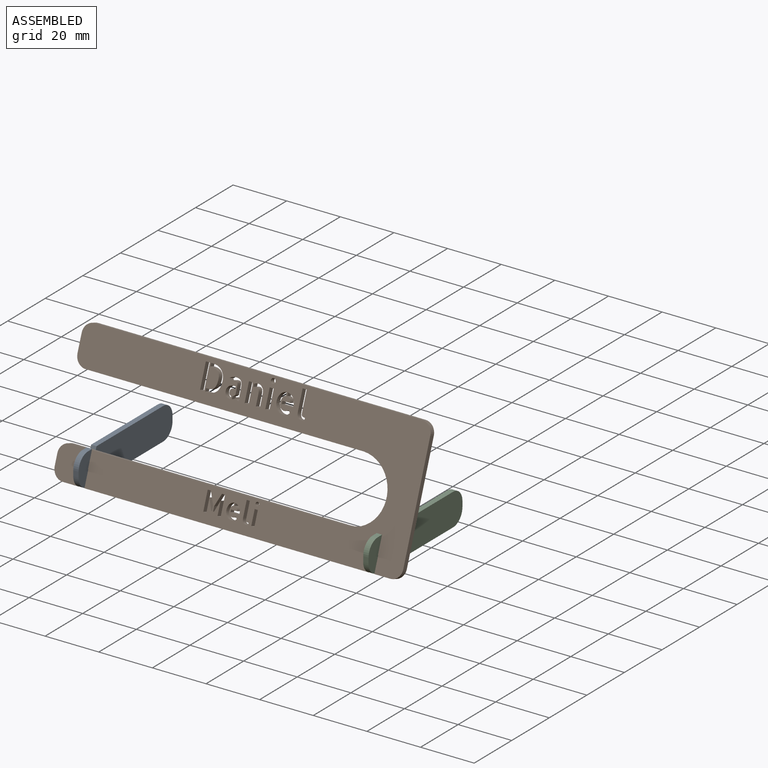
[diagram: assembled view]
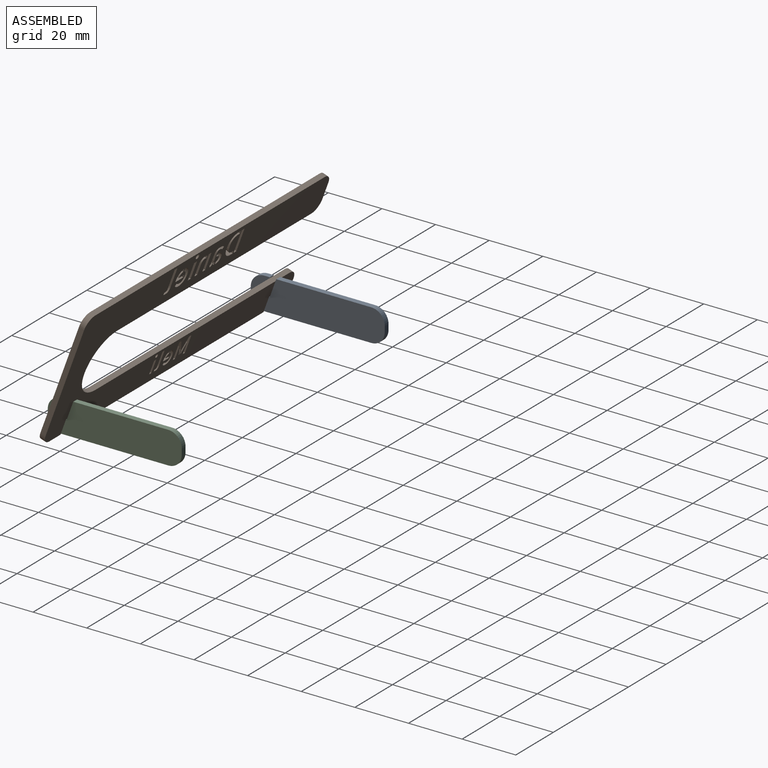
[diagram: assembled view, second angle]
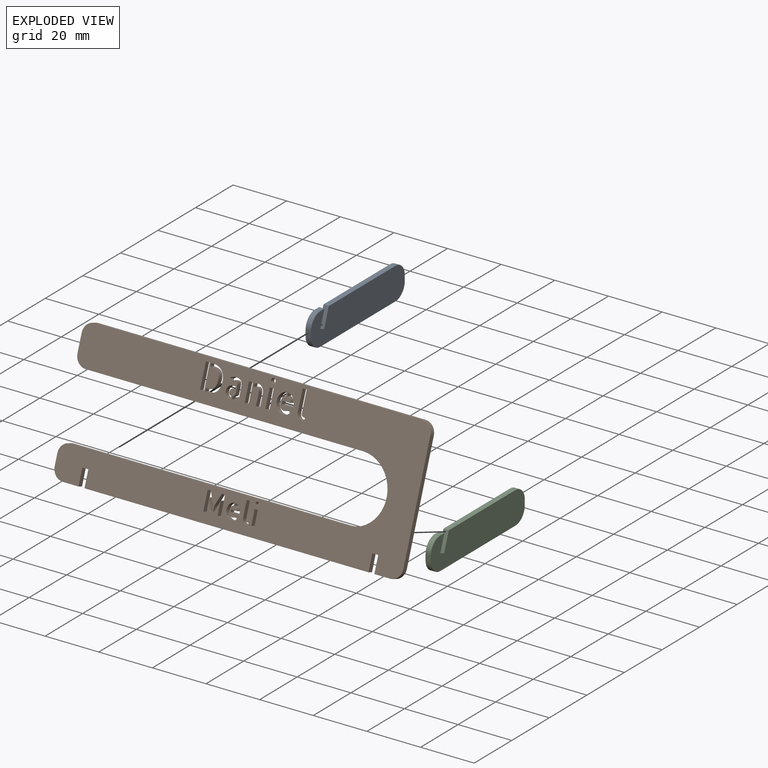
[diagram: exploded view]
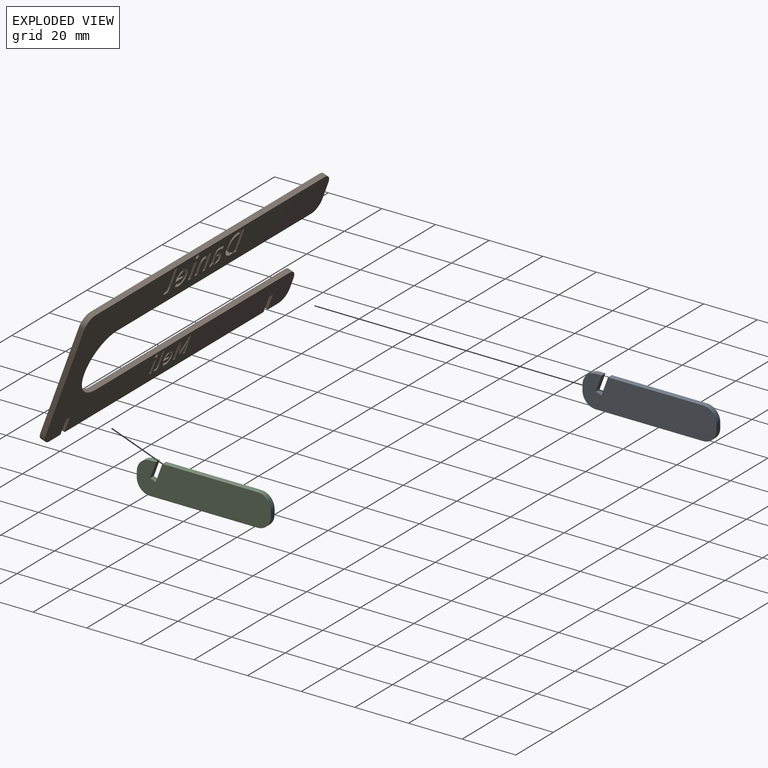
[diagram: exploded view, second angle]
ASSEMBLY  parts=3 mates=2
PART A: 14 faces, bbox 50x12x2 mm
  f0: plane 2x2mm, normal (-1,0,0), area 4mm2, adj f1,f11,f12,f13
  f1: cylinder r=5mm len=5mm, axis (0,0,-1), area 15.7mm2, adj f0,f2,f12,f13
  f2: plane 40x2mm, normal (0,-1,0), area 80mm2, adj f1,f3,f12,f13
  f3: cylinder r=5mm len=5mm, axis (0,0,-1), area 15.7mm2, adj f2,f4,f12,f13
  f4: plane 2x2mm, normal (1,0,0), area 4mm2, adj f3,f5,f12,f13
  f5: cylinder r=5mm len=5mm, axis (0,0,-1), area 15.7mm2, adj f4,f6,f12,f13
  f6: plane 35.48x2mm, normal (0,1,0), area 70.9mm2, adj f5,f7,f12,f13
  f7: plane 6.75x2.46mm, normal (-0.94,0.34,0), area 14.4mm2, adj f6,f8,f12,f13
  f8: plane 2.07x2mm, normal (0.34,0.94,0), area 4.4mm2, adj f7,f9,f12,f13
  f9: plane 6x2.18mm, normal (0.94,-0.34,0), area 12.8mm2, adj f8,f10,f12,f13
  f10: plane 2.18x2mm, normal (0,1,0), area 4.4mm2, adj f9,f11,f12,f13
  f11: cylinder r=5mm len=5mm, axis (0,0,-1), area 15.7mm2, adj f0,f10,f12,f13
  f12: plane 50x12mm, normal (0,0,1), area 563.6mm2, adj f0,f1,f2,f3,f4,f5,f6,f7
  f13: plane 50x12mm, normal (0,0,-1), area 563.6mm2, adj f0,f1,f2,f3,f4,f5,f6,f7
PART B: 275 faces, bbox 130x50x2 mm
  f0: plane 5.85x2mm, normal (0,-1,0), area 11.7mm2, adj f2,f14,f271,f274
  f1: plane 105.91x2mm, normal (0,-1,0), area 211.8mm2, adj f2,f270,f272,f274
  f2: plane 130x50mm, normal (0,0,-1), area 3542.8mm2, adj f0,f1,f3,f4,f5,f6,f7,f8
  f3: plane 42x2mm, normal (1,0,0), area 84mm2, adj f2,f4,f267,f274
  f4: cylinder r=4mm len=4mm, axis (0,0,-1), area 12.6mm2, adj f2,f3,f5,f274
  f5: plane 122x2mm, normal (0,1,0), area 244mm2, adj f2,f4,f6,f274
  f6: cylinder r=4mm len=4mm, axis (0,0,-1), area 12.6mm2, adj f2,f5,f7,f274
  f7: plane 6.5x2mm, normal (-1,0,0), area 13mm2, adj f2,f6,f8,f274
  f8: cylinder r=4mm len=4mm, axis (0,0,-1), area 12.6mm2, adj f2,f7,f9,f274
  f9: plane 103.66x2mm, normal (0,-1,0), area 207.3mm2, adj f2,f8,f10,f274
  f10: cylinder r=11.73mm len=23.45mm, axis (0,0,-1), area 73.7mm2, adj f2,f9,f11,f274
  f11: plane 102.96x2mm, normal (0,1,0), area 205.9mm2, adj f2,f10,f12,f274
  f12: cylinder r=4mm len=4mm, axis (0,0,-1), area 12.6mm2, adj f2,f11,f13,f274
  f13: plane 4.05x2mm, normal (-1,0,0), area 8.1mm2, adj f2,f12,f14,f274
  f14: cylinder r=4mm len=4mm, axis (0,0,-1), area 12.6mm2, adj f0,f2,f13,f274
  f15: plane 5.85x2mm, normal (0,-1,0), area 11.7mm2, adj f2,f267,f268,f274
  f16: extruded ~2x0.48mm, area 1.1mm2, adj f2,f17,f249,f274
  f17: extruded ~2x0.48mm, area 1.1mm2, adj f2,f16,f18,f274
  f18: extruded ~2x0.48mm, area 1.1mm2, adj f2,f17,f19,f274
  f19: extruded ~2x0.48mm, area 1.1mm2, adj f2,f18,f20,f274
  f20: extruded ~2x0.47mm, area 1.1mm2, adj f2,f19,f21,f274
  f21: extruded ~2x0.48mm, area 1.1mm2, adj f2,f20,f22,f274
  f22: extruded ~2x0.48mm, area 1.1mm2, adj f2,f21,f249,f274
  f23: plane 5.36x2mm, normal (-1,0,0), area 10.7mm2, adj f2,f24,f250,f274
  f24: plane 2x1.16mm, normal (0,1,0), area 2.3mm2, adj f2,f23,f25,f274
  f25: plane 5.36x2mm, normal (1,0,0), area 10.7mm2, adj f2,f24,f250,f274
  f26: plane 5.74x2mm, normal (-1,0,0), area 11.5mm2, adj f2,f27,f251,f274
  f27: extruded ~2x0.51mm, area 1mm2, adj f2,f26,f28,f274
  f28: extruded ~2x0.28mm, area 0.7mm2, adj f2,f27,f29,f274
  f29: extruded ~2x0.35mm, area 0.7mm2, adj f2,f28,f30,f274
  f30: extruded ~2x0.42mm, area 0.8mm2, adj f2,f29,f31,f274
  f31: plane 2x0.7mm, normal (-1,0,0), area 1.4mm2, adj f2,f30,f32,f274
  f32: extruded ~2x0.26mm, area 0.5mm2, adj f2,f31,f33,f274
  f33: extruded ~2x0.25mm, area 0.5mm2, adj f2,f32,f34,f274
  f34: extruded ~2x0.28mm, area 0.6mm2, adj f2,f33,f35,f274
  f35: extruded ~2x0.29mm, area 0.6mm2, adj f2,f34,f36,f274
  f36: extruded ~2x0.26mm, area 0.5mm2, adj f2,f35,f37,f274
  f37: extruded ~2x0.5mm, area 1.2mm2, adj f2,f36,f38,f274
  f38: extruded ~2x0.49mm, area 1.1mm2, adj f2,f37,f39,f274
  f39: extruded ~2x0.53mm, area 1.1mm2, adj f2,f38,f40,f274
  f40: extruded ~2x0.4mm, area 0.8mm2, adj f2,f39,f41,f274
  f41: plane 5.69x2mm, normal (1,0,0), area 11.4mm2, adj f2,f40,f251,f274
  f42: extruded ~2x0.68mm, area 1.4mm2, adj f2,f43,f252,f274
  f43: extruded ~2x0.26mm, area 0.5mm2, adj f2,f42,f44,f274
  f44: extruded ~2x0.33mm, area 0.7mm2, adj f2,f43,f45,f274
  f45: extruded ~2x0.35mm, area 0.8mm2, adj f2,f44,f46,f274
  f46: extruded ~2x0.31mm, area 0.8mm2, adj f2,f45,f47,f274
  f47: plane 2x0.64mm, normal (-0.84,-0.55,0), area 1.5mm2, adj f2,f46,f48,f274
  f48: extruded ~2x0.73mm, area 1.9mm2, adj f2,f47,f49,f274
  f49: extruded ~2x1.06mm, area 2.2mm2, adj f2,f48,f50,f274
  f50: extruded ~2x0.98mm, area 2mm2, adj f2,f49,f51,f274
  f51: extruded ~2x0.78mm, area 2mm2, adj f2,f50,f52,f274
  f52: extruded ~2x0.86mm, area 2mm2, adj f2,f51,f53,f274
  f53: extruded ~2x1.06mm, area 2.2mm2, adj f2,f52,f54,f274
  f54: extruded ~2x1.03mm, area 2.1mm2, adj f2,f53,f55,f274
  f55: extruded ~2x0.85mm, area 2mm2, adj f2,f54,f56,f274
  f56: extruded ~2x0.71mm, area 1.9mm2, adj f2,f55,f57,f274
  f57: extruded ~2x0.87mm, area 1.8mm2, adj f2,f56,f58,f274
  f58: plane 2x0.91mm, normal (-1,0,0), area 1.8mm2, adj f2,f57,f59,f274
  f59: extruded ~2x0.58mm, area 1.3mm2, adj f2,f58,f60,f274
  f60: extruded ~2x0.5mm, area 1.2mm2, adj f2,f59,f61,f274
  f61: extruded ~2x0.57mm, area 1.2mm2, adj f2,f60,f62,f274
  f62: extruded ~2x0.5mm, area 1mm2, adj f2,f61,f63,f274
  f63: extruded ~2x0.69mm, area 1.4mm2, adj f2,f62,f64,f274
  f64: extruded ~2x0.55mm, area 1.2mm2, adj f2,f63,f252,f274
  f65: plane 2x0.89mm, normal (1,0,0), area 1.8mm2, adj f2,f66,f253,f274
  f66: extruded ~2x0.93mm, area 1.9mm2, adj f2,f65,f67,f274
  f67: extruded ~2x0.71mm, area 1.9mm2, adj f2,f66,f68,f274
  f68: extruded ~2x0.83mm, area 1.9mm2, adj f2,f67,f69,f274
  f69: extruded ~2x0.97mm, area 2mm2, adj f2,f68,f70,f274
  f70: extruded ~2x0.46mm, area 0.9mm2, adj f2,f69,f71,f274
  f71: plane 3.26x2mm, normal (0,1,0), area 6.5mm2, adj f2,f70,f72,f274
  f72: plane 2x0.84mm, normal (1,0,0), area 1.7mm2, adj f2,f71,f73,f274
  f73: plane 2.19x2mm, normal (0,-1,0), area 4.4mm2, adj f2,f72,f74,f274
  f74: extruded ~2x0.48mm, area 1mm2, adj f2,f73,f75,f274
  f75: extruded ~2x0.42mm, area 1mm2, adj f2,f74,f76,f274
  f76: extruded ~2x0.37mm, area 1mm2, adj f2,f75,f253,f274
  f77: plane 4.34x2mm, normal (0.92,-0.4,0), area 9.5mm2, adj f2,f78,f254,f274
  f78: plane 2x1.16mm, normal (0,-1,0), area 2.3mm2, adj f2,f77,f79,f274
  f79: plane 7x2mm, normal (-1,0,0), area 14mm2, adj f2,f78,f80,f274
  f80: plane 2x1.16mm, normal (0,1,0), area 2.3mm2, adj f2,f79,f81,f274
  f81: plane 4.81x2mm, normal (1,0,0), area 9.6mm2, adj f2,f80,f82,f274
  f82: plane 3.89x2mm, normal (-0.93,0.37,0), area 8.4mm2, adj f2,f81,f83,f274
  f83: plane 2x0.31mm, normal (0,1,0), area 0.6mm2, adj f2,f82,f254,f274
  f84: plane 7x2mm, normal (1,0,0), area 14mm2, adj f2,f85,f255,f274
  f85: plane 2x1.16mm, normal (0,-1,0), area 2.3mm2, adj f2,f84,f86,f274
  f86: plane 4.32x2mm, normal (-0.92,-0.4,0), area 9.4mm2, adj f2,f85,f87,f274
  f87: plane 2x1.76mm, normal (-1,0,0), area 3.5mm2, adj f2,f86,f88,f274
  f88: plane 2x0.3mm, normal (0,1,0), area 0.6mm2, adj f2,f87,f89,f274
  f89: plane 3.89x2mm, normal (0.93,0.38,0), area 8.4mm2, adj f2,f88,f90,f274
  f90: plane 4.81x2mm, normal (-1,0,0), area 9.6mm2, adj f2,f89,f255,f274
  f91: plane 7.38x2mm, normal (-1,0,0), area 14.8mm2, adj f2,f92,f256,f274
  f92: extruded ~2x0.65mm, area 1.3mm2, adj f2,f91,f93,f274
  f93: extruded ~2x0.35mm, area 0.9mm2, adj f2,f92,f94,f274
  f94: extruded ~2x0.45mm, area 0.9mm2, adj f2,f93,f95,f274
  f95: extruded ~2x0.54mm, area 1.1mm2, adj f2,f94,f96,f274
  f96: plane 2x0.9mm, normal (-1,0,0), area 1.8mm2, adj f2,f95,f97,f274
  f97: extruded ~2x0.33mm, area 0.7mm2, adj f2,f96,f98,f274
  f98: extruded ~2x0.32mm, area 0.6mm2, adj f2,f97,f99,f274
  f99: extruded ~2x0.37mm, area 0.7mm2, adj f2,f98,f100,f274
  f100: extruded ~2x0.37mm, area 0.7mm2, adj f2,f99,f101,f274
  f101: extruded ~2x0.33mm, area 0.7mm2, adj f2,f100,f102,f274
  f102: extruded ~2x0.65mm, area 1.5mm2, adj f2,f101,f103,f274
  f103: extruded ~2x0.63mm, area 1.4mm2, adj f2,f102,f104,f274
  f104: extruded ~2x0.68mm, area 1.4mm2, adj f2,f103,f105,f274
  f105: extruded ~2x0.51mm, area 1mm2, adj f2,f104,f106,f274
  f106: plane 7.31x2mm, normal (1,0,0), area 14.6mm2, adj f2,f105,f256,f274
  f107: extruded ~2x0.87mm, area 1.8mm2, adj f2,f108,f257,f274
  f108: extruded ~2x0.34mm, area 0.7mm2, adj f2,f107,f109,f274
  f109: extruded ~2x0.43mm, area 0.9mm2, adj f2,f108,f110,f274
  f110: extruded ~2x0.45mm, area 1mm2, adj f2,f109,f111,f274
  f111: extruded ~2x0.4mm, area 1mm2, adj f2,f110,f112,f274
  f112: plane 2x0.82mm, normal (-0.84,-0.55,0), area 2mm2, adj f2,f111,f113,f274
  f113: extruded ~2x0.94mm, area 2.4mm2, adj f2,f112,f114,f274
  f114: extruded ~2x1.37mm, area 2.8mm2, adj f2,f113,f115,f274
  f115: extruded ~2x1.26mm, area 2.6mm2, adj f2,f114,f116,f274
  f116: extruded ~2x1mm, area 2.5mm2, adj f2,f115,f117,f274
  f117: extruded ~2x1.11mm, area 2.6mm2, adj f2,f116,f118,f274
  f118: extruded ~2x1.37mm, area 2.8mm2, adj f2,f117,f119,f274
  f119: extruded ~2x1.32mm, area 2.7mm2, adj f2,f118,f120,f274
  f120: extruded ~2x1.09mm, area 2.5mm2, adj f2,f119,f121,f274
  f121: extruded ~2x0.91mm, area 2.4mm2, adj f2,f120,f122,f274
  f122: extruded ~2x1.12mm, area 2.4mm2, adj f2,f121,f123,f274
  f123: plane 2x1.17mm, normal (-1,0,0), area 2.3mm2, adj f2,f122,f124,f274
  f124: extruded ~2x0.74mm, area 1.7mm2, adj f2,f123,f125,f274
  f125: extruded ~2x0.64mm, area 1.6mm2, adj f2,f124,f126,f274
  f126: extruded ~2x0.74mm, area 1.6mm2, adj f2,f125,f127,f274
  f127: extruded ~2x0.65mm, area 1.3mm2, adj f2,f126,f128,f274
  f128: extruded ~2x0.89mm, area 1.8mm2, adj f2,f127,f129,f274
  f129: extruded ~2x0.71mm, area 1.6mm2, adj f2,f128,f257,f274
  f130: plane 2x1.15mm, normal (1,0,0), area 2.3mm2, adj f2,f131,f258,f274
  f131: extruded ~2x1.19mm, area 2.5mm2, adj f2,f130,f132,f274
  f132: extruded ~2x0.91mm, area 2.4mm2, adj f2,f131,f133,f274
  f133: extruded ~2x1.06mm, area 2.4mm2, adj f2,f132,f134,f274
  f134: extruded ~2x1.25mm, area 2.5mm2, adj f2,f133,f135,f274
  f135: extruded ~2x0.59mm, area 1.2mm2, adj f2,f134,f136,f274
  f136: plane 4.19x2mm, normal (0,1,0), area 8.4mm2, adj f2,f135,f137,f274
  f137: plane 2x1.07mm, normal (1,0,0), area 2.1mm2, adj f2,f136,f138,f274
  f138: plane 2.82x2mm, normal (0,-1,0), area 5.6mm2, adj f2,f137,f139,f274
  f139: extruded ~2x0.61mm, area 1.2mm2, adj f2,f138,f140,f274
  f140: extruded ~2x0.54mm, area 1.3mm2, adj f2,f139,f141,f274
  f141: extruded ~2x0.47mm, area 1.3mm2, adj f2,f140,f258,f274
  f142: extruded ~2x0.62mm, area 1.4mm2, adj f2,f143,f259,f274
  f143: extruded ~2x0.62mm, area 1.4mm2, adj f2,f142,f144,f274
  f144: extruded ~2x0.62mm, area 1.4mm2, adj f2,f143,f145,f274
  f145: extruded ~2x0.62mm, area 1.4mm2, adj f2,f144,f146,f274
  f146: extruded ~2x0.61mm, area 1.4mm2, adj f2,f145,f147,f274
  f147: extruded ~2x0.62mm, area 1.4mm2, adj f2,f146,f148,f274
  f148: extruded ~2x0.61mm, area 1.4mm2, adj f2,f147,f259,f274
  f149: plane 6.88x2mm, normal (-1,0,0), area 13.8mm2, adj f2,f150,f260,f274
  f150: plane 2x1.49mm, normal (0,1,0), area 3mm2, adj f2,f149,f151,f274
  f151: plane 6.88x2mm, normal (1,0,0), area 13.8mm2, adj f2,f150,f260,f274
  f152: extruded ~2x0.76mm, area 1.9mm2, adj f2,f153,f261,f274
  f153: extruded ~2x0.48mm, area 1.2mm2, adj f2,f152,f154,f274
  f154: extruded ~2x0.57mm, area 1.2mm2, adj f2,f153,f155,f274
  f155: extruded ~2x0.6mm, area 1.2mm2, adj f2,f154,f156,f274
  f156: extruded ~2x0.6mm, area 1.2mm2, adj f2,f155,f157,f274
  f157: plane 3.87x2mm, normal (-1,0,0), area 7.7mm2, adj f2,f156,f158,f274
  f158: plane 2x1.49mm, normal (0,1,0), area 3mm2, adj f2,f157,f159,f274
  f159: plane 3.75x2mm, normal (1,0,0), area 7.5mm2, adj f2,f158,f160,f274
  f160: extruded ~2x0.79mm, area 1.6mm2, adj f2,f159,f161,f274
  f161: extruded ~2x0.67mm, area 1.4mm2, adj f2,f160,f162,f274
  f162: extruded ~2x0.46mm, area 1.2mm2, adj f2,f161,f163,f274
  f163: extruded ~2x0.65mm, area 1.4mm2, adj f2,f162,f164,f274
  f164: extruded ~2x0.46mm, area 0.9mm2, adj f2,f163,f165,f274
  f165: extruded ~2x0.56mm, area 1.2mm2, adj f2,f164,f166,f274
  f166: plane 2x0.94mm, normal (1,0,0), area 1.9mm2, adj f2,f165,f167,f274
  f167: extruded ~2x0.72mm, area 1.5mm2, adj f2,f166,f168,f274
  f168: extruded ~2x0.75mm, area 1.5mm2, adj f2,f167,f261,f274
  f169: plane 2x1.32mm, normal (0,-1,0), area 2.6mm2, adj f2,f170,f262,f274
  f170: plane 2x0.7mm, normal (-0.98,-0.22,0), area 1.4mm2, adj f2,f169,f171,f274
  f171: plane 6.19x2mm, normal (-1,0,0), area 12.4mm2, adj f2,f170,f172,f274
  f172: plane 2x1.48mm, normal (0,1,0), area 3mm2, adj f2,f171,f262,f274
  f173: plane 2x1.68mm, normal (-1,0,0), area 3.4mm2, adj f2,f174,f263,f274
  f174: extruded ~2x0.29mm, area 0.6mm2, adj f2,f173,f175,f274
  f175: extruded ~2x0.38mm, area 0.8mm2, adj f2,f174,f176,f274
  f176: extruded ~2x0.35mm, area 0.7mm2, adj f2,f175,f177,f274
  f177: extruded ~2x0.21mm, area 0.6mm2, adj f2,f176,f178,f274
  f178: plane 2x0.82mm, normal (-0.9,0.43,0), area 1.8mm2, adj f2,f177,f179,f274
  f179: extruded ~2x0.34mm, area 0.7mm2, adj f2,f178,f180,f274
  f180: extruded ~2x0.34mm, area 0.8mm2, adj f2,f179,f181,f274
  f181: extruded ~2x0.3mm, area 0.8mm2, adj f2,f180,f182,f274
  f182: extruded ~2x0.36mm, area 0.8mm2, adj f2,f181,f183,f274
  f183: extruded ~2x0.54mm, area 1.5mm2, adj f2,f182,f184,f274
  f184: extruded ~2x0.8mm, area 1.8mm2, adj f2,f183,f185,f274
  f185: plane 2x0.93mm, normal (1,0,0), area 1.9mm2, adj f2,f184,f186,f274
  f186: extruded ~2x0.53mm, area 1.2mm2, adj f2,f185,f187,f274
  f187: extruded ~2x0.42mm, area 1.2mm2, adj f2,f186,f188,f274
  f188: plane 2.58x2mm, normal (1,0,0), area 5.2mm2, adj f2,f187,f189,f274
  f189: extruded ~2x0.95mm, area 1.9mm2, adj f2,f188,f190,f274
  f190: extruded ~2x0.52mm, area 1.1mm2, adj f2,f189,f191,f274
  f191: extruded ~2x0.36mm, area 0.8mm2, adj f2,f190,f192,f274
  f192: extruded ~2x0.51mm, area 1mm2, adj f2,f191,f193,f274
  f193: extruded ~2x0.51mm, area 1mm2, adj f2,f192,f194,f274
  f194: extruded ~2x0.44mm, area 0.9mm2, adj f2,f193,f195,f274
  f195: extruded ~2x0.35mm, area 0.8mm2, adj f2,f194,f196,f274
  f196: extruded ~2x0.23mm, area 0.6mm2, adj f2,f195,f197,f274
  f197: plane 2x0.84mm, normal (0.84,0.55,0), area 2mm2, adj f2,f196,f198,f274
  f198: extruded ~2x0.37mm, area 0.9mm2, adj f2,f197,f199,f274
  f199: extruded ~2x0.56mm, area 1.2mm2, adj f2,f198,f200,f274
  f200: extruded ~2x0.69mm, area 1.4mm2, adj f2,f199,f201,f274
  f201: extruded ~2x0.78mm, area 1.6mm2, adj f2,f200,f202,f274
  f202: extruded ~2x0.71mm, area 1.4mm2, adj f2,f201,f203,f274
  f203: extruded ~2x0.63mm, area 1.4mm2, adj f2,f202,f204,f274
  f204: extruded ~2x0.5mm, area 1.4mm2, adj f2,f203,f205,f274
  f205: extruded ~2x0.71mm, area 1.6mm2, adj f2,f204,f206,f274
  f206: extruded ~2x0.86mm, area 1.7mm2, adj f2,f205,f263,f274
  f207: extruded ~2x0.64mm, area 1.3mm2, adj f2,f208,f264,f274
  f208: extruded ~2x0.82mm, area 1.7mm2, adj f2,f207,f209,f274
  f209: extruded ~2x0.65mm, area 1.5mm2, adj f2,f208,f210,f274
  f210: plane 2x0.99mm, normal (-1,0,0), area 2mm2, adj f2,f209,f211,f274
  f211: extruded ~2x0.16mm, area 0.3mm2, adj f2,f210,f212,f274
  f212: extruded ~2x0.8mm, area 1.6mm2, adj f2,f211,f213,f274
  f213: extruded ~2x0.68mm, area 1.5mm2, adj f2,f212,f214,f274
  f214: extruded ~2x0.65mm, area 1.6mm2, adj f2,f213,f215,f274
  f215: extruded ~2x0.99mm, area 2mm2, adj f2,f214,f216,f274
  f216: extruded ~2x0.97mm, area 2mm2, adj f2,f215,f217,f274
  f217: extruded ~2x0.67mm, area 1.8mm2, adj f2,f216,f218,f274
  f218: extruded ~2x0.85mm, area 1.9mm2, adj f2,f217,f219,f274
  f219: extruded ~2x0.96mm, area 2mm2, adj f2,f218,f220,f274
  f220: plane 2x0.54mm, normal (0,-1,0), area 1.1mm2, adj f2,f219,f221,f274
  f221: plane 2x0.87mm, normal (-1,0,0), area 1.7mm2, adj f2,f220,f222,f274
  f222: plane 2x0.27mm, normal (0,1,0), area 0.5mm2, adj f2,f221,f223,f274
  f223: extruded ~2x0.51mm, area 1mm2, adj f2,f222,f224,f274
  f224: extruded ~2x0.5mm, area 1.1mm2, adj f2,f223,f264,f274
  f225: plane 2x0.75mm, normal (0,-1,0), area 1.5mm2, adj f2,f226,f265,f274
  f226: extruded ~2x2mm, area 4.1mm2, adj f2,f225,f227,f274
  f227: extruded ~2x1.43mm, area 3.5mm2, adj f2,f226,f228,f274
  f228: extruded ~2x1.36mm, area 3.2mm2, adj f2,f227,f229,f274
  f229: extruded ~2x1.57mm, area 3.2mm2, adj f2,f228,f230,f274
  f230: extruded ~2x1.9mm, area 3.8mm2, adj f2,f229,f231,f274
  f231: extruded ~2x1.32mm, area 2.9mm2, adj f2,f230,f232,f274
  f232: extruded ~2x0.84mm, area 2.4mm2, adj f2,f231,f233,f274
  f233: extruded ~2x0.88mm, area 2mm2, adj f2,f232,f234,f274
  f234: extruded ~2x0.78mm, area 1.6mm2, adj f2,f233,f235,f274
  f235: extruded ~2x0.52mm, area 1.1mm2, adj f2,f234,f236,f274
  f236: plane 2x1.44mm, normal (0,1,0), area 2.9mm2, adj f2,f235,f237,f274
  f237: plane 2x1.07mm, normal (1,0,0), area 2.1mm2, adj f2,f236,f238,f274
  f238: plane 2x0.95mm, normal (0,-1,0), area 1.9mm2, adj f2,f237,f239,f274
  f239: extruded ~2.15x2mm, area 4.9mm2, adj f2,f238,f240,f274
  f240: extruded ~2.76x2mm, area 5.8mm2, adj f2,f239,f241,f274
  f241: extruded ~2x1.11mm, area 2.2mm2, adj f2,f240,f242,f274
  f242: extruded ~2x0.99mm, area 2.3mm2, adj f2,f241,f243,f274
  f243: extruded ~2x1.04mm, area 2.6mm2, adj f2,f242,f244,f274
  f244: extruded ~2x1.71mm, area 3.5mm2, adj f2,f243,f245,f274
  f245: plane 2x0.36mm, normal (0,1,0), area 0.7mm2, adj f2,f244,f265,f274
  f246: plane 9x2mm, normal (1,0,0), area 18mm2, adj f2,f247,f266,f274
  f247: plane 2x1.47mm, normal (0,-1,0), area 2.9mm2, adj f2,f246,f248,f274
  f248: plane 9x2mm, normal (-1,0,0), area 18mm2, adj f2,f247,f266,f274
  f249: extruded ~2x0.48mm, area 1.1mm2, adj f2,f16,f22,f274
  f250: plane 2x1.16mm, normal (0,-1,0), area 2.3mm2, adj f2,f23,f25,f274
  f251: plane 2x1.16mm, normal (0,-1,0), area 2.3mm2, adj f2,f26,f41,f274
  f252: extruded ~2x0.47mm, area 1.2mm2, adj f2,f42,f64,f274
  f253: extruded ~2x0.47mm, area 1mm2, adj f2,f65,f76,f274
  f254: plane 2x1.74mm, normal (1,0,0), area 3.5mm2, adj f2,f77,f83,f274
  f255: plane 2x1.16mm, normal (0,1,0), area 2.3mm2, adj f2,f84,f90,f274
  f256: plane 2x1.49mm, normal (0,-1,0), area 3mm2, adj f2,f91,f106,f274
  f257: extruded ~2x0.6mm, area 1.6mm2, adj f2,f107,f129,f274
  f258: extruded ~2x0.6mm, area 1.3mm2, adj f2,f130,f141,f274
  f259: extruded ~2x0.62mm, area 1.4mm2, adj f2,f142,f148,f274
  f260: plane 2x1.49mm, normal (0,-1,0), area 3mm2, adj f2,f149,f151,f274
  f261: extruded ~2x0.93mm, area 1.9mm2, adj f2,f152,f168,f274
  f262: plane 6.88x2mm, normal (1,0,0), area 13.8mm2, adj f2,f169,f172,f274
  f263: extruded ~2x0.86mm, area 1.7mm2, adj f2,f173,f206,f274
  f264: extruded ~2x0.38mm, area 1.1mm2, adj f2,f207,f224,f274
  f265: plane 2x1.11mm, normal (1,0,0), area 2.2mm2, adj f2,f225,f245,f274
  f266: plane 2x1.47mm, normal (0,1,0), area 2.9mm2, adj f2,f246,f248,f274
  f267: cylinder r=4mm len=4mm, axis (0,0,-1), area 12.6mm2, adj f2,f3,f15,f274
  f268: plane 6x2mm, normal (-1,0,0), area 12mm2, adj f2,f15,f269,f274
  f269: plane 2.2x2mm, normal (0,-1,0), area 4.4mm2, adj f2,f268,f270,f274
  f270: plane 6x2mm, normal (1,0,0), area 12mm2, adj f1,f2,f269,f274
  f271: plane 6x2mm, normal (1,0,0), area 12mm2, adj f0,f2,f273,f274
  f272: plane 6x2mm, normal (-1,0,0), area 12mm2, adj f1,f2,f273,f274
  f273: plane 2.2x2mm, normal (0,-1,0), area 4.4mm2, adj f2,f271,f272,f274
  f274: plane 130x50mm, normal (0,0,1), area 3542.8mm2, adj f0,f1,f3,f4,f5,f6,f7,f8
PART C: same geometry as A
PLACE A rot(axis=(0.58,0.58,0.58),120deg) t=(-55.49,29.62,31.25)mm
PLACE B rot(axis=(1,0,0),70deg) t=(-0.43,19.06,0.21)mm fixed
PLACE C rot(axis=(0.58,0.58,0.58),120deg) t=(52.62,29.62,31.25)mm
MATE fastened A.f9 <-> B.f274  axis (0,0.94,-0.34) through (-54.49,10.69,-16.96)mm
MATE fastened B.f274 <-> C.f9  axis (0,-0.94,0.34) through (53.62,10.69,-16.96)mm
